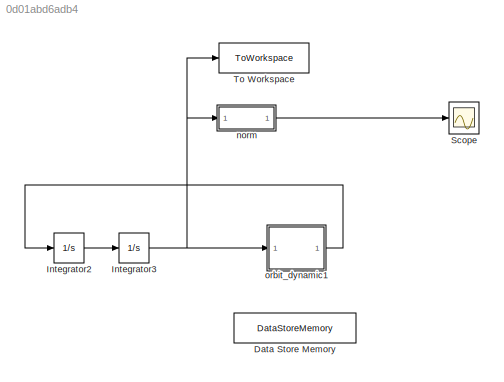
MODEL slx_0d01abd6adb4
KIND model
CONFIG AbsTol = auto
CONFIG EnableMultiTasking = off
CONFIG FixedStep = 0.01
CONFIG MaxStep = auto
CONFIG MinStep = auto
CONFIG RelTol = 1e-100
CONFIG SampleTimeConstraint = Unconstrained
CONFIG SolverName = ode4
CONFIG StartTime = 0.0
CONFIG StopTime = 10000
BLOCK [DataStoreMemory] Data Store Memory
  DataStoreName = astrophysical_constants
  InitialValue = astrophysical_constants
  OutDataTypeStr = double
  ReadBeforeWriteMsg = warning
  ShowAdditionalParam = off
  SignalType = real
  WriteAfterReadMsg = warning
  WriteAfterWriteMsg = warning
BLOCK [Integrator] Integrator2
  InitialCondition = N_dr_H2N_0
  Ports = [1, 1]
BLOCK [Integrator] Integrator3
  InitialCondition = N_r_H2N_0
  Ports = [1, 1]
BLOCK [Scope] Scope
  Floating = off
  NumInputPorts = 1
  Ports = [1]
  ScopeSpecificationString = Simulink.scopes.TimeScopeBlockCfg('CurrentConfiguration', extmgr.ConfigurationSet(extmgr.Configuration('Core','General UI',true),extmgr.Configuration('Core','Source UI',true),extmgr.Configuration('Sources','WiredSimulink',true),extmgr.Configuration('Visuals','Time Domain',true,'SerializedDisplays',{struct('MinYLimReal','-1347.01197','MaxYLimReal','22372.28387','YLabelReal','','MinYLimMag','  0.000...<+1422ch>
BLOCK [ToWorkspace] To Workspace
  FixptAsFi = on
  MaxDataPoints = inf
  Ports = [1]
  SampleTime = 10
  VariableName = N_r_H2N
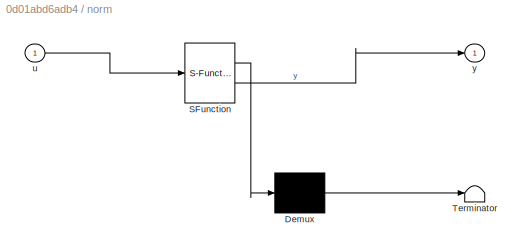
BLOCK [SubSystem] norm
  ErrorFcn = Stateflow.Translate.translate
  PermitHierarchicalResolution = ExplicitOnly
  Ports = [1, 1]
  RequestExecContextInheritance = off
  SFBlockType = MATLAB Function
  TreatAsAtomicUnit = on
BLOCK [Demux] norm/ Demux 
  Outputs = 1
  Ports = [1, 1]
BLOCK [S-Function] norm/ SFunction 
  EnableBusSupport = on
  FunctionName = sf_sfun
  PortCounts = [1 2]
  Ports = [1, 2]
  SFcnIsStateOwnerBlock = off
  SFunctionDeploymentMode = off
  Tag = Stateflow S-Function 2
BLOCK [Terminator] norm/ Terminator 
BLOCK [Inport] norm/u
BLOCK [Outport] norm/y
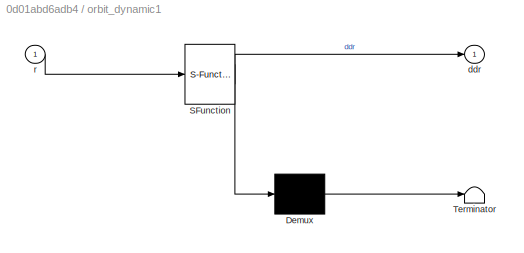
BLOCK [SubSystem] orbit_dynamic1
  ErrorFcn = Stateflow.Translate.translate
  PermitHierarchicalResolution = ExplicitOnly
  Ports = [1, 1]
  RequestExecContextInheritance = off
  SFBlockType = MATLAB Function
  TreatAsAtomicUnit = on
BLOCK [Demux] orbit_dynamic1/ Demux 
  Outputs = 1
  Ports = [1, 1]
BLOCK [S-Function] orbit_dynamic1/ SFunction 
  EnableBusSupport = on
  FunctionName = sf_sfun
  PortCounts = [1 2]
  Ports = [1, 2]
  SFcnIsStateOwnerBlock = off
  SFunctionDeploymentMode = off
  Tag = Stateflow S-Function 4
BLOCK [Terminator] orbit_dynamic1/ Terminator 
BLOCK [Outport] orbit_dynamic1/ddr
BLOCK [Inport] orbit_dynamic1/r
LINE Integrator2:1 -> Integrator3:1
NET Integrator3:1 -> To Workspace:1, norm:1, orbit_dynamic1:1
LINE norm:1 -> Scope:1
LINE orbit_dynamic1:1 -> Integrator2:1
note: NET lines group one-source signal fan-out (src -> all destinations, sorted); 1:1 wires keep LINE
CHART norm states=1 transitions=1
  STATE_LABEL 'eML_blk_kernel()'
  STATE_LABEL 'SCRIPT:\nfunction y = fcn(u)\ny = norm(u);\n'
CHART orbit_dynamic1 states=1 transitions=1
  STATE_LABEL 'eML_blk_kernel()'
  STATE_LABEL 'SCRIPT:\nfunction ddr = fcn(r)\nglobal astrophysical_constants;\n\nmu_earth=astrophysical_constants(1,1);\n\nddr = -(mu_earth/(norm(r)^3))*r;\n'
CHART  states=0 transitions=0
CHART  states=0 transitions=0
